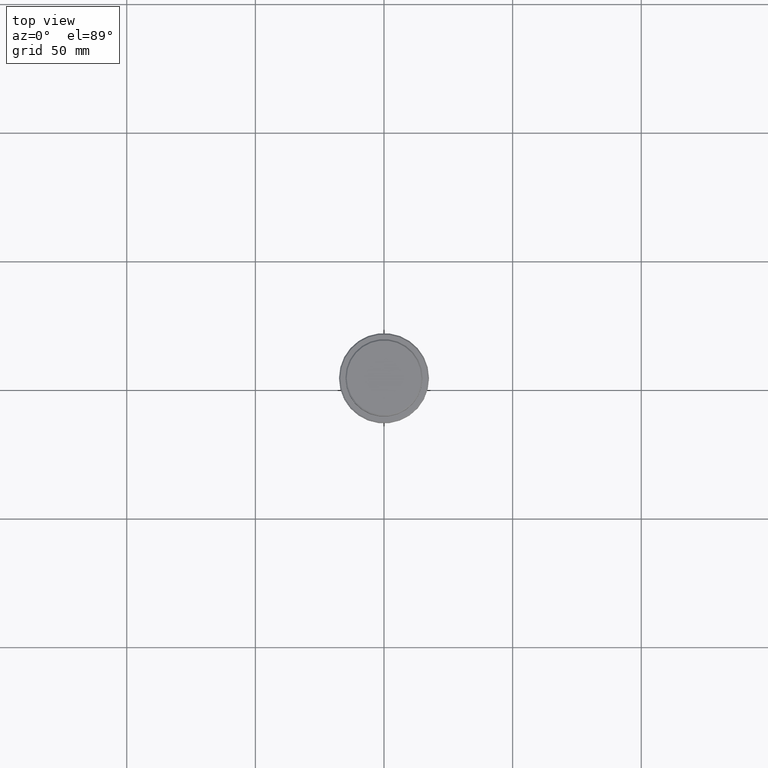
[diagram: clean part render]
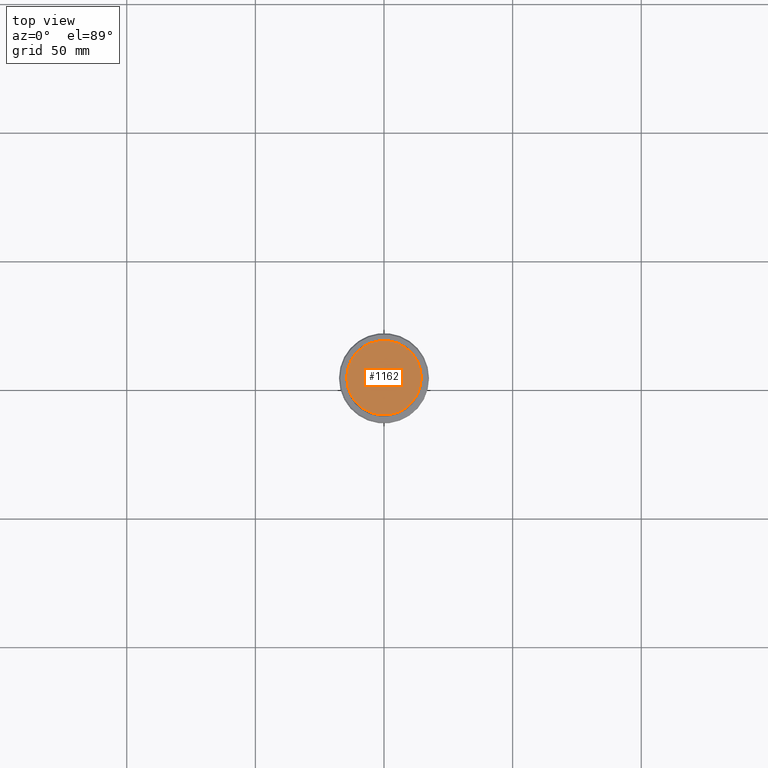
[diagram: same view with one face highlighted and labeled with its STEP entity id]
A machine part, top view. The second image highlights one B-rep face of the part: STEP entity #1162.
In plain terms, the highlighted planar face has unit normal (0, -0, 1).
Its self-contained STEP definition (entity closure, byte-faithful):
#7 = VERTEX_POINT ( 'NONE', #700 ) ;
#62 = EDGE_LOOP ( 'NONE', ( #1168, #181 ) ) ;
#113 = DIRECTION ( 'NONE',  ( 1.000000000000000000, 0.000000000000000000, 0.000000000000000000 ) ) ;
#158 = VERTEX_POINT ( 'NONE', #194 ) ;
#181 = ORIENTED_EDGE ( 'NONE', *, *, #1053, .T. ) ;
#194 = CARTESIAN_POINT ( 'NONE',  ( 14.49999999999992717, 1.806354028742341069E-15, 0.000000000000000000 ) ) ;
#217 = CARTESIAN_POINT ( 'NONE',  ( 0.000000000000000000, 0.000000000000000000, 0.000000000000000000 ) ) ;
#236 = PLANE ( 'NONE',  #908 ) ;
#347 = DIRECTION ( 'NONE',  ( 1.000000000000000000, 0.000000000000000000, 0.000000000000000000 ) ) ;
#562 = FACE_OUTER_BOUND ( 'NONE', #62, .T. ) ;
#700 = CARTESIAN_POINT ( 'NONE',  ( -14.49999999999992717, 0.000000000000000000, 0.000000000000000000 ) ) ;
#823 = EDGE_CURVE ( 'NONE', #7, #158, #978, .T. ) ;
#838 = CIRCLE ( 'NONE', #1186, 14.49999999999992717 ) ;
#908 = AXIS2_PLACEMENT_3D ( 'NONE', #217, #1095, #113 ) ;
#934 = CARTESIAN_POINT ( 'NONE',  ( 0.000000000000000000, 0.000000000000000000, 0.000000000000000000 ) ) ;
#978 = CIRCLE ( 'NONE', #1008, 14.49999999999992717 ) ;
#1008 = AXIS2_PLACEMENT_3D ( 'NONE', #1345, #1226, #347 ) ;
#1053 = EDGE_CURVE ( 'NONE', #158, #7, #838, .T. ) ;
#1056 = DIRECTION ( 'NONE',  ( 1.000000000000000000, 0.000000000000000000, 0.000000000000000000 ) ) ;
#1095 = DIRECTION ( 'NONE',  ( 0.000000000000000000, -0.000000000000000000, 1.000000000000000000 ) ) ;
#1162 = ADVANCED_FACE ( 'NONE', ( #562 ), #236, .T. ) ;
#1168 = ORIENTED_EDGE ( 'NONE', *, *, #823, .T. ) ;
#1182 = DIRECTION ( 'NONE',  ( -0.000000000000000000, -0.000000000000000000, 1.000000000000000000 ) ) ;
#1186 = AXIS2_PLACEMENT_3D ( 'NONE', #934, #1182, #1056 ) ;
#1226 = DIRECTION ( 'NONE',  ( -0.000000000000000000, -0.000000000000000000, 1.000000000000000000 ) ) ;
#1345 = CARTESIAN_POINT ( 'NONE',  ( 0.000000000000000000, 0.000000000000000000, 0.000000000000000000 ) ) ;